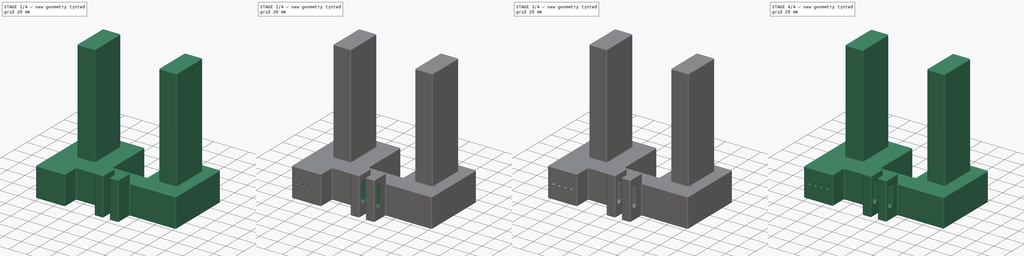
[diagram: build sequence overview — one tinted view per stage of 4, left to right]
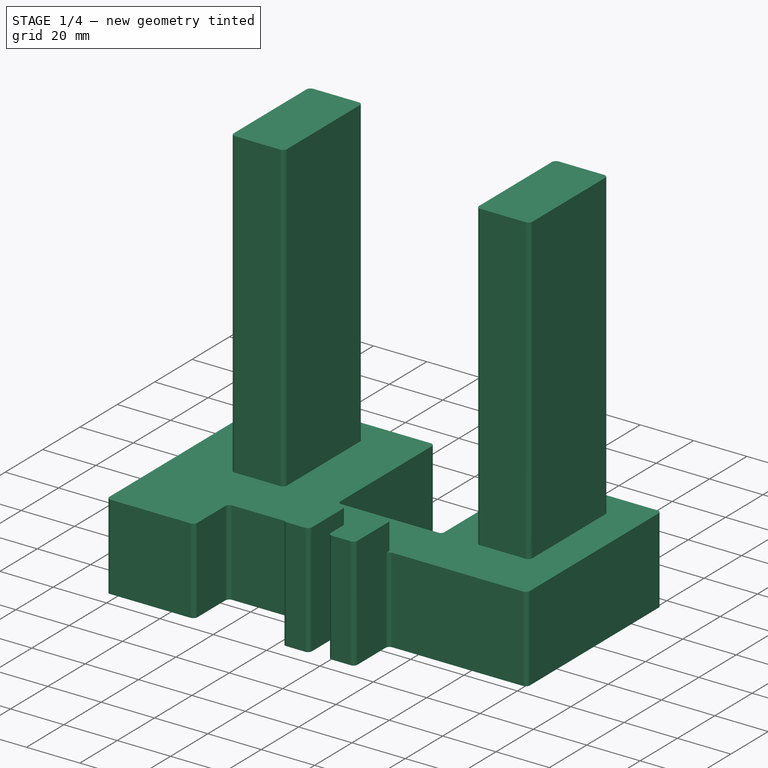
[diagram: stage 1 of 4 — iso view after this stage's code; geometry added in this stage tinted green]
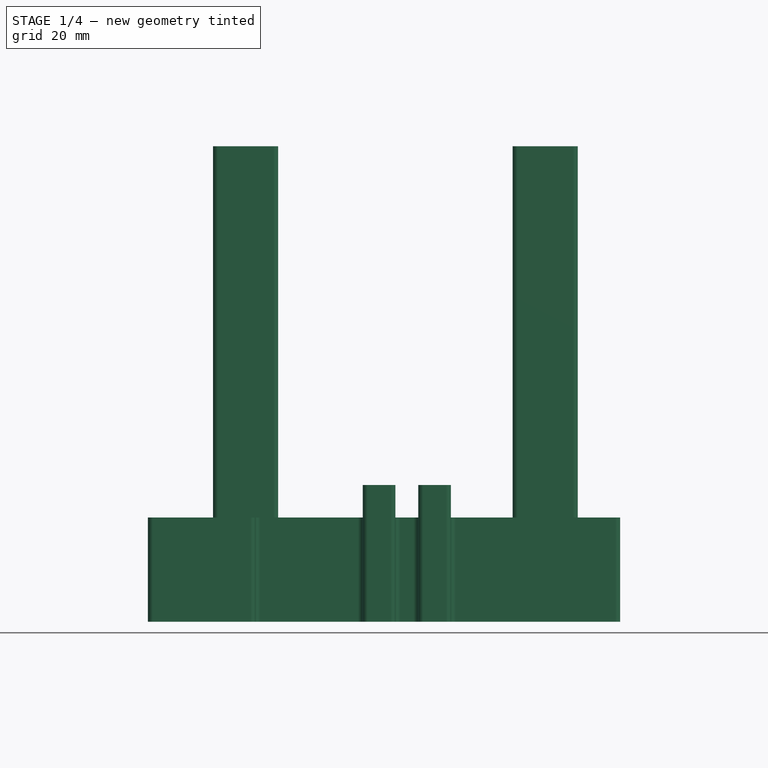
[diagram: stage 1 of 4 — front view after this stage's code; geometry added in this stage tinted green]
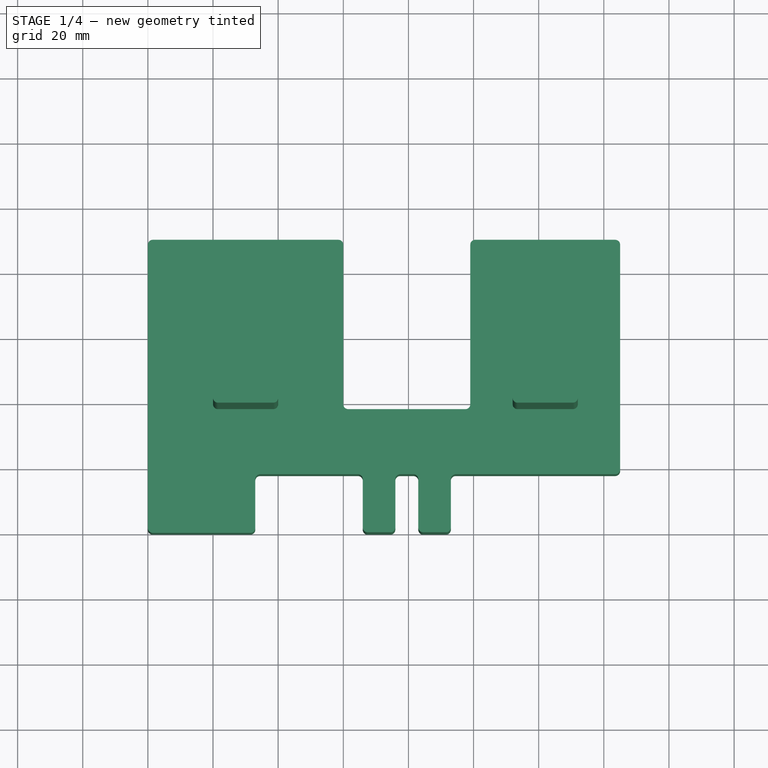
[diagram: stage 1 of 4 — top view after this stage's code; geometry added in this stage tinted green]
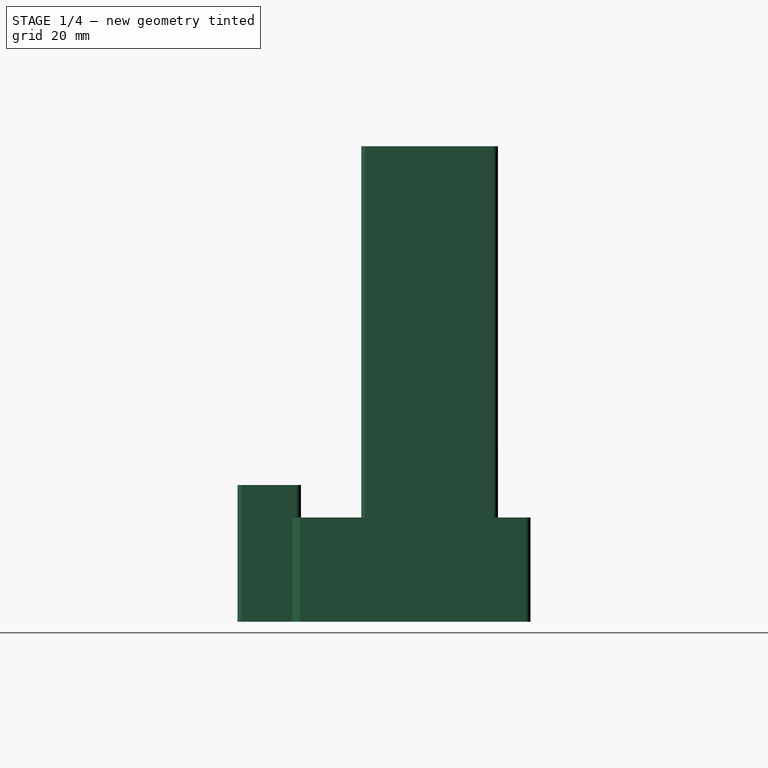
[diagram: stage 1 of 4 — right view after this stage's code; geometry added in this stage tinted green]
FCSTD DOCUMENT  (FreeCAD 1.0RUnknown)
Label: water-valve-support-bolthead
License: All rights reserved
LicenseURL: https://en.wikipedia.org/wiki/All_rights_reserved
objects: Sketcher::SketchObject×6, PartDesign::Pad×4, PartDesign::Fillet×4, PartDesign::Pocket×3, PartDesign::Body×1
note: 46 computed .brp shape members not serialized (recipe doc carries the construction recipe); baked Part::Feature solids carry a one-line shape summary decoded from their .brp

FEATURE [Sketcher::SketchObject] Sketch
  ArcFitTolerance = 1e-06
  AttachmentSupport = -> [XY_Plane]
  FullyConstrained = false
  MakeInternals = false
  MapMode = 5
  sketch-geometry (67):
    g0: LineSegment StartX=0 StartY=1.5 StartZ=0 EndX=0 EndY=38 EndZ=0
    g1: LineSegment StartX=0 StartY=38 StartZ=0 EndX=0 EndY=88.5 EndZ=0
    g2: LineSegment StartX=1.5 StartY=90 StartZ=0 EndX=58.5 EndY=90 EndZ=0
    g3: LineSegment StartX=60 StartY=88.5 StartZ=0 EndX=60 EndY=39.5 EndZ=0
    g4: LineSegment StartX=61.5 StartY=38 StartZ=0 EndX=97.5 EndY=38 EndZ=0
    g5: LineSegment StartX=99 StartY=39.5 StartZ=0 EndX=99 EndY=88.5 EndZ=0
    g6: LineSegment StartX=100.5 StartY=90 StartZ=0 EndX=143.5 EndY=90 EndZ=0
    g7: LineSegment StartX=145 StartY=88.5 StartZ=0 EndX=145 EndY=19.5 EndZ=0
    g8: LineSegment [constr] StartX=143.506 StartY=0 StartZ=0 EndX=122.525 EndY=0 EndZ=0
    g9: ArcOfCircle CenterX=1.5 CenterY=88.5 CenterZ=0 NormalX=0 NormalY=0 NormalZ=1 AngleXU=0 Radius=1.5 StartAngle=1.5708 EndAngle=3.14159
    g10: GeomPoint [constr] X=0 Y=90 Z=0
    g11: ArcOfCircle CenterX=58.5 CenterY=88.5 CenterZ=0 NormalX=0 NormalY=0 NormalZ=1 AngleXU=0 Radius=1.5 StartAngle=-9e-16 EndAngle=1.5708
    g12: GeomPoint [constr] X=60 Y=90 Z=0
    g13: ArcOfCircle CenterX=61.5 CenterY=39.5 CenterZ=0 NormalX=0 NormalY=0 NormalZ=1 AngleXU=0 Radius=1.5 StartAngle=3.14159 EndAngle=4.71239
    g14: GeomPoint [constr] X=60 Y=38 Z=0
    g15: ArcOfCircle CenterX=97.5 CenterY=39.5 CenterZ=0 NormalX=0 NormalY=0 NormalZ=1 AngleXU=0 Radius=1.5 StartAngle=4.71239 EndAngle=6.28319
    g16: GeomPoint [constr] X=99 Y=38 Z=0
    g17: ArcOfCircle CenterX=100.5 CenterY=88.5 CenterZ=0 NormalX=0 NormalY=0 NormalZ=1 AngleXU=0 Radius=1.5 StartAngle=1.5708 EndAngle=3.14159
    g18: GeomPoint [constr] X=99 Y=90 Z=0
    g19: ArcOfCircle CenterX=143.5 CenterY=88.5 CenterZ=0 NormalX=0 NormalY=0 NormalZ=1 AngleXU=0 Radius=1.5 StartAngle=0 EndAngle=1.5708
    g20: GeomPoint [constr] X=145 Y=90 Z=0
    g21: ArcOfCircle [constr] CenterX=143.506 CenterY=1.5 CenterZ=0 NormalX=0 NormalY=0 NormalZ=1 AngleXU=0 Radius=1.5 StartAngle=4.71239 EndAngle=6.28336
    g22: GeomPoint [constr] X=145 Y=0 Z=0
    g23: ArcOfCircle CenterX=1.5 CenterY=1.5 CenterZ=0 NormalX=0 NormalY=0 NormalZ=1 AngleXU=0 Radius=1.5 StartAngle=3.14159 EndAngle=4.7124
    g24: GeomPoint [constr] X=0 Y=0 Z=0
    g25: GeomPoint [constr] X=79.5 Y=38 Z=0
    g26: LineSegment [constr] StartX=79.5 StartY=38 StartZ=0 EndX=79.5 EndY=0 EndZ=0
    g27: LineSegment StartX=75.975 StartY=1.5 StartZ=0 EndX=75.975 EndY=16.5 EndZ=0
    g28: LineSegment StartX=77.475 StartY=18 StartZ=0 EndX=81.525 EndY=18 EndZ=0
    g29: LineSegment StartX=83.025 StartY=1.5 StartZ=0 EndX=83.025 EndY=16.5 EndZ=0
    g30: GeomPoint [constr] X=79.5 Y=18 Z=0
    g31: LineSegment StartX=32.975 StartY=16.5 StartZ=0 EndX=32.975 EndY=1.5 EndZ=0
    g32: LineSegment StartX=65.975 StartY=1.5 StartZ=0 EndX=65.975 EndY=16.5 EndZ=0
    g33: LineSegment StartX=64.475 StartY=18 StartZ=0 EndX=34.475 EndY=18 EndZ=0
    g34: LineSegment StartX=93.025 StartY=16.5 StartZ=0 EndX=93.025 EndY=1.5 EndZ=0
    g35: LineSegment [constr] StartX=121.025 StartY=1.5 StartZ=0 EndX=121.025 EndY=16.5 EndZ=0
    g36: LineSegment StartX=119.525 StartY=18 StartZ=0 EndX=94.525 EndY=18 EndZ=0
    g37: LineSegment StartX=31.475 StartY=0 StartZ=0 EndX=1.50001 EndY=0 EndZ=0
    g38: LineSegment StartX=74.475 StartY=0 StartZ=0 EndX=67.475 EndY=0 EndZ=0
    g39: LineSegment StartX=91.525 StartY=0 StartZ=0 EndX=84.525 EndY=0 EndZ=0
    g40: ArcOfCircle CenterX=31.475 CenterY=1.5 CenterZ=0 NormalX=0 NormalY=0 NormalZ=1 AngleXU=0 Radius=1.5 StartAngle=4.71239 EndAngle=6.28319
    g41: ArcOfCircle CenterX=67.475 CenterY=1.5 CenterZ=0 NormalX=0 NormalY=0 NormalZ=1 AngleXU=0 Radius=1.5 StartAngle=3.14159 EndAngle=4.71239
    g42: GeomPoint [constr] X=65.975 Y=0 Z=0
    g43: ArcOfCircle CenterX=74.475 CenterY=1.5 CenterZ=0 NormalX=0 NormalY=0 NormalZ=1 AngleXU=0 Radius=1.5 StartAngle=4.71239 EndAngle=6.28319
    g44: ArcOfCircle CenterX=84.525 CenterY=1.5 CenterZ=0 NormalX=0 NormalY=0 NormalZ=1 AngleXU=0 Radius=1.5 StartAngle=3.14159 EndAngle=4.71239
    g45: GeomPoint [constr] X=83.025 Y=0 Z=0
    g46: ArcOfCircle CenterX=91.525 CenterY=1.5 CenterZ=0 NormalX=0 NormalY=0 NormalZ=1 AngleXU=0 Radius=1.5 StartAngle=4.71239 EndAngle=6.28319
    g47: ArcOfCircle [constr] CenterX=122.525 CenterY=1.5 CenterZ=0 NormalX=0 NormalY=0 NormalZ=1 AngleXU=0 Radius=1.5 StartAngle=3.14159 EndAngle=4.71239
    g48: ArcOfCircle CenterX=34.475 CenterY=16.5 CenterZ=0 NormalX=0 NormalY=0 NormalZ=1 AngleXU=0 Radius=1.5 StartAngle=1.5708 EndAngle=3.14159
    g49: GeomPoint [constr] X=32.975 Y=18 Z=0
    g50: GeomPoint [constr] X=65.975 Y=18 Z=0
    g51: GeomPoint [constr] X=75.975 Y=18 Z=0
    g52: GeomPoint [constr] X=83.025 Y=18 Z=0
    g53: GeomPoint [constr] X=93.025 Y=18 Z=0
    g54: ArcOfCircle [constr] CenterX=119.525 CenterY=16.5 CenterZ=0 NormalX=0 NormalY=0 NormalZ=1 AngleXU=0 Radius=1.5 StartAngle=9e-16 EndAngle=1.5708
    g55: GeomPoint [constr] X=121.025 Y=18 Z=0
    g56: ArcOfCircle CenterX=64.475 CenterY=16.5 CenterZ=0 NormalX=0 NormalY=0 NormalZ=1 AngleXU=0 Radius=1.5 StartAngle=0 EndAngle=1.5708
    g57: GeomPoint [constr] X=65.975 Y=18 Z=0
    g58: ArcOfCircle CenterX=77.475 CenterY=16.5 CenterZ=0 NormalX=0 NormalY=0 NormalZ=1 AngleXU=0 Radius=1.5 StartAngle=1.5708 EndAngle=3.14159
    g59: GeomPoint [constr] X=75.975 Y=18 Z=0
    g60: ArcOfCircle CenterX=81.525 CenterY=16.5 CenterZ=0 NormalX=0 NormalY=0 NormalZ=1 AngleXU=0 Radius=1.5 StartAngle=6e-16 EndAngle=1.5708
    g61: GeomPoint [constr] X=83.025 Y=18 Z=0
    g62: ArcOfCircle CenterX=94.525 CenterY=16.5 CenterZ=0 NormalX=0 NormalY=0 NormalZ=1 AngleXU=0 Radius=1.5 StartAngle=1.5708 EndAngle=3.14159
    g63: GeomPoint [constr] X=93.025 Y=18 Z=0
    g64: LineSegment StartX=119.525 StartY=18 StartZ=0 EndX=143.5 EndY=18 EndZ=0
    g65: ArcOfCircle CenterX=143.5 CenterY=19.5 CenterZ=0 NormalX=0 NormalY=0 NormalZ=1 AngleXU=0 Radius=1.5 StartAngle=4.71239 EndAngle=6.28319
    g66: LineSegment [constr] StartX=145 StartY=19.5 StartZ=0 EndX=145 EndY=1.36507 EndZ=0
  constraints (152):
    c: Coincident(g24,g-1)
    c: PointOnObject(g0,g-2)
    c: Vertical(g1)
    c: Horizontal(g2)
    c: Vertical(g3)
    c: Horizontal(g4)
    c: Vertical(g5)
    c: Horizontal(g6)
    c: Vertical(g7)
    c: PointOnObject(g22,g-1)
    c: Horizontal(g1,g14)
    c: DistanceX(g24,g22) = 145
    c: Distance(g24,g0) = 38
    c: DistanceX(g16,g22) = 46
    c: DistanceX(g14,g16) = 39
    c: Distance(g12,g14) = 52
    c: Coincident(g1,g0)
    c: PointOnObject(g10,g1)
    c: PointOnObject(g10,g2)
    c: Tangent(g1,g9) = 1.5708
    c: Tangent(g2,g9) = 1.5708
    c: PointOnObject(g12,g2)
    c: PointOnObject(g12,g3)
    c: Tangent(g2,g11) = 1.5708
    c: Tangent(g3,g11) = 1.5708
    c: PointOnObject(g14,g4)
    c: PointOnObject(g14,g3)
    c: Tangent(g4,g13) = -1.5708
    c: Tangent(g3,g13) = -1.5708
    c: PointOnObject(g16,g5)
    c: PointOnObject(g16,g4)
    c: Tangent(g5,g15) = -1.5708
    c: Tangent(g4,g15) = -1.5708
    c: PointOnObject(g18,g5)
    c: PointOnObject(g18,g6)
    c: Tangent(g5,g17) = 1.5708
    c: Tangent(g6,g17) = 1.5708
    c: PointOnObject(g20,g6)
    c: PointOnObject(g20,g7)
    c: Tangent(g6,g19) = 1.5708
    c: Tangent(g7,g19) = 1.5708
    c: PointOnObject(g22,g8)
    c: PointOnObject(g22,g7)
    c: Tangent(g8,g21) = 1.5708
    c: PointOnObject(g24,g37)
    c: PointOnObject(g24,g0)
    c: Coincident(g37,g23) = 1.5708
    c: Tangent(g0,g23) = 1.5708
    c: Equal(g9,g11)
    c: Equal(g11,g13)
    c: Equal(g13,g15)
    c: Equal(g15,g17)
    c: Equal(g17,g19)
    c: Equal(g19,g21)
    c: Equal(g21,g23)
    c: Radius(g9) = 1.5
    c: Horizontal(g11,g17)
    c: Symmetric(g4,g4,g25)
    c: Coincident(g26,g25)
    c: Vertical(g26)
    c: Vertical(g27)
    c: Horizontal(g28)
    c: Vertical(g29)
    c: Symmetric(g51,g52,g30)
    c: PointOnObject(g30,g26)
    c: Vertical(g31)
    c: Vertical(g32)
    c: Horizontal(g33)
    c: Vertical(g34)
    c: Vertical(g35)
    c: Horizontal(g36)
    c: Horizontal(g53,g30)
    c: Horizontal(g30,g50)
    c: Tangent(g37,g40) = 1.5708
    c: Tangent(g31,g40) = 1.5708
    c: PointOnObject(g42,g32)
    c: PointOnObject(g42,g38)
    c: Tangent(g32,g41) = 1.5708
    c: Tangent(g38,g41) = 1.5708
    c: Tangent(g38,g43) = 1.5708
    c: Tangent(g27,g43) = -1.5708
    c: PointOnObject(g45,g29)
    c: PointOnObject(g45,g39)
    c: Tangent(g29,g44) = 1.5708
    c: Tangent(g39,g44) = 1.5708
    c: Tangent(g39,g46) = 1.5708
    c: Tangent(g34,g46) = 1.5708
    c: Tangent(g35,g47) = 1.5708
    c: Tangent(g8,g47) = 1.5708
    c: PointOnObject(g49,g31)
    c: PointOnObject(g49,g33)
    c: Tangent(g31,g48) = -1.5708
    c: Tangent(g33,g48) = -1.5708
    c: PointOnObject(g53,g34)
    c: PointOnObject(g53,g36)
    c: PointOnObject(g55,g36)
    c: PointOnObject(g55,g35)
    c: Tangent(g36,g54) = -1.5708
    c: Tangent(g35,g54) = -1.5708
    c: Equal(g40,g48)
    c: Equal(g41,g43)
    c: Equal(g44,g46)
    c: Equal(g54,g47)
    c: Horizontal(g38)
    c: Horizontal(g8)
    c: Horizontal(g39)
    c: Horizontal(g39,g8)
    c: Horizontal(g8,g38)
    c: Horizontal(g38,g26)
    c: Horizontal(g37,g38)
    c: Equal(g40,g23)
    c: Equal(g38,g39)
    c: Distance(g27,g32) = 10
    c: Distance(g49,g-1) = 18
    c: Distance(g29,g27) = 7.05
    c: Coincident(g57,g50)
    c: Coincident(g59,g51)
    c: Coincident(g61,g52)
    c: Equal(g46,g41)
    c: Equal(g43,g40)
    c: Equal(g47,g48)
    c: PointOnObject(g57,g33)
    c: PointOnObject(g57,g32)
    c: Tangent(g33,g56) = -1.5708
    c: Tangent(g32,g56) = -1.5708
    c: PointOnObject(g59,g27)
    c: PointOnObject(g59,g28)
    c: Tangent(g27,g58) = 1.5708
    c: Tangent(g28,g58) = 1.5708
    c: PointOnObject(g61,g28)
    c: PointOnObject(g61,g29)
    c: Tangent(g28,g60) = 1.5708
    c: Tangent(g29,g60) = -1.5708
    c: PointOnObject(g63,g34)
    c: PointOnObject(g63,g36)
    c: Tangent(g34,g62) = -1.5708
    c: Tangent(g36,g62) = -1.5708
    c: Equal(g62,g60)
    c: Equal(g60,g58)
    c: Equal(g58,g56)
    c: Equal(g56,g41)
    c: DistanceX(g33,g33) = 30
    c: DistanceX(g36,g36) = 25
    c: Horizontal(g23,g40)
    c: Coincident(g64,g36)
    c: Horizontal(g64)
    c: Tangent(g7,g65) = 1.5708
    c: Tangent(g64,g65) = -1.5708
    c: Equal(g65,g54)
    c: Tangent(g66,g65) = 1.5708
    c: PointOnObject(g66,g21)
    c: Vertical(g66)
FEATURE [PartDesign::Pad] Pad
  Direction = (0,0,1)
  Length = 32
  Length2 = 10
  Profile = -> Sketch
  ReferenceAxis = -> Sketch [N_Axis]
  Refine = true
  Suppressed = false
  Type = 0
FEATURE [Sketcher::SketchObject] Sketch001
  ArcFitTolerance = 1e-06
  AttachmentSupport = -> [Pad]
  ExternalGeometry = -> [Pad]
  FullyConstrained = false
  MakeInternals = false
  MapMode = 5
  Placement = pos=(0,0,32) rot=(0,0,1;0rad)
  sketch-geometry (35):
    g0: GeomPoint [constr] X=-6.4e-15 Y=90 Z=0
    g1: GeomPoint [constr] X=-6.4e-15 Y=38 Z=0
    g2: GeomPoint [constr] X=145 Y=90 Z=0
    g3: GeomPoint [constr] X=30 Y=90 Z=0
    g4: GeomPoint [constr] X=122 Y=90 Z=0
    g5: GeomPoint [constr] X=30 Y=90 Z=0
    g6: GeomPoint [constr] X=122 Y=90 Z=0
    g7: GeomPoint [constr] X=30 Y=90 Z=0
    g8: GeomPoint [constr] X=122 Y=90 Z=0
    g9: LineSegment StartX=20 StartY=78.5 StartZ=0 EndX=20 EndY=39.5 EndZ=0
    g10: LineSegment StartX=21.5 StartY=38 StartZ=0 EndX=38.5 EndY=38 EndZ=0
    g11: LineSegment StartX=40 StartY=39.5 StartZ=0 EndX=40 EndY=78.5 EndZ=0
    g12: LineSegment StartX=38.5 StartY=80 StartZ=0 EndX=21.5 EndY=80 EndZ=0
    g13: GeomPoint [constr] X=30 Y=59 Z=0
    g14: LineSegment StartX=112 StartY=78.5 StartZ=0 EndX=112 EndY=39.5 EndZ=0
    g15: LineSegment StartX=113.5 StartY=38 StartZ=0 EndX=130.5 EndY=38 EndZ=0
    g16: LineSegment StartX=132 StartY=39.5 StartZ=0 EndX=132 EndY=78.5 EndZ=0
    g17: LineSegment StartX=130.5 StartY=80 StartZ=0 EndX=113.5 EndY=80 EndZ=0
    g18: GeomPoint [constr] X=122 Y=59 Z=0
    g19: ArcOfCircle CenterX=21.5 CenterY=78.5 CenterZ=0 NormalX=0 NormalY=0 NormalZ=1 AngleXU=0 Radius=1.5 StartAngle=1.5708 EndAngle=3.14159
    g20: GeomPoint [constr] X=20 Y=80 Z=0
    g21: ArcOfCircle CenterX=38.5 CenterY=78.5 CenterZ=0 NormalX=0 NormalY=0 NormalZ=1 AngleXU=0 Radius=1.5 StartAngle=-9e-16 EndAngle=1.5708
    g22: GeomPoint [constr] X=40 Y=80 Z=0
    g23: ArcOfCircle CenterX=38.5 CenterY=39.5 CenterZ=0 NormalX=0 NormalY=0 NormalZ=1 AngleXU=0 Radius=1.5 StartAngle=4.71239 EndAngle=6.28319
    g24: GeomPoint [constr] X=40 Y=38 Z=0
    g25: ArcOfCircle CenterX=21.5 CenterY=39.5 CenterZ=0 NormalX=0 NormalY=0 NormalZ=1 AngleXU=0 Radius=1.5 StartAngle=3.14159 EndAngle=4.71239
    g26: GeomPoint [constr] X=20 Y=38 Z=0
    g27: ArcOfCircle CenterX=130.5 CenterY=78.5 CenterZ=0 NormalX=0 NormalY=0 NormalZ=1 AngleXU=0 Radius=1.5 StartAngle=-4.4e-15 EndAngle=1.5708
    g28: GeomPoint [constr] X=132 Y=80 Z=0
    g29: ArcOfCircle CenterX=113.5 CenterY=78.5 CenterZ=0 NormalX=0 NormalY=0 NormalZ=1 AngleXU=0 Radius=1.5 StartAngle=1.5708 EndAngle=3.14159
    g30: GeomPoint [constr] X=112 Y=80 Z=0
    g31: ArcOfCircle CenterX=113.5 CenterY=39.5 CenterZ=0 NormalX=0 NormalY=0 NormalZ=1 AngleXU=0 Radius=1.5 StartAngle=3.14159 EndAngle=4.71239
    g32: GeomPoint [constr] X=112 Y=38 Z=0
    g33: ArcOfCircle CenterX=130.5 CenterY=39.5 CenterZ=0 NormalX=0 NormalY=0 NormalZ=1 AngleXU=0 Radius=1.5 StartAngle=4.71239 EndAngle=6.28319
    g34: GeomPoint [constr] X=132 Y=38 Z=0
  constraints (64):
    c: Coincident(g7,g3)
    c: Coincident(g8,g4)
    c: Symmetric(g-3,g-3,g5)
    c: Symmetric(g-13,g-13,g6)
    c: Coincident(g7,g5)
    c: Coincident(g4,g6)
    c: Vertical(g9)
    c: Vertical(g11)
    c: Horizontal(g10)
    c: Horizontal(g12)
    c: Symmetric(g24,g20,g13)
    c: Vertical(g14)
    c: Vertical(g16)
    c: Horizontal(g15)
    c: Horizontal(g17)
    c: Symmetric(g34,g30,g18)
    c: Vertical(g13,g3)
    c: Vertical(g18,g4)
    c: Distance(g22,g20) = 20
    c: Horizontal(g24,g-10)
    c: Distance(g-3,g12) = 10
    c: Horizontal(g32,g24)
    c: PointOnObject(g20,g9)
    c: PointOnObject(g20,g12)
    c: Tangent(g9,g19) = -1.5708
    c: Tangent(g12,g19) = -1.5708
    c: PointOnObject(g22,g11)
    c: PointOnObject(g22,g12)
    c: Tangent(g11,g21) = -1.5708
    c: Tangent(g12,g21) = -1.5708
    c: PointOnObject(g24,g10)
    c: PointOnObject(g24,g11)
    c: Tangent(g10,g23) = -1.5708
    c: Tangent(g11,g23) = -1.5708
    c: PointOnObject(g26,g9)
    c: PointOnObject(g26,g10)
    c: Tangent(g9,g25) = -1.5708
    c: Tangent(g10,g25) = -1.5708
    c: PointOnObject(g28,g16)
    c: PointOnObject(g28,g17)
    c: Tangent(g16,g27) = -1.5708
    c: Tangent(g17,g27) = -1.5708
    c: PointOnObject(g30,g14)
    c: PointOnObject(g30,g17)
    c: Tangent(g14,g29) = -1.5708
    c: Tangent(g17,g29) = -1.5708
    c: PointOnObject(g32,g15)
    c: PointOnObject(g32,g14)
    c: Tangent(g15,g31) = -1.5708
    c: Tangent(g14,g31) = -1.5708
    c: PointOnObject(g34,g16)
    c: PointOnObject(g34,g15)
    c: Tangent(g16,g33) = -1.5708
    c: Tangent(g15,g33) = -1.5708
    c: Equal(g29,g27)
    c: Equal(g27,g33)
    c: Equal(g33,g31)
    c: Equal(g31,g23)
    c: Equal(g23,g21)
    c: Equal(g21,g19)
    c: Equal(g19,g25)
    c: Equal(g25,g-7)
    c: Equal(g17,g12)
    c: Equal(g14,g11)
FEATURE [PartDesign::Pad] Pad001
  BaseFeature = -> Pad
  Direction = (0,0,1)
  Length = 114
  Length2 = 10
  Profile = -> Sketch001
  ReferenceAxis = -> Sketch001 [N_Axis]
  Refine = true
  Suppressed = false
  Type = 0
FEATURE [Sketcher::SketchObject] Sketch002
  ArcFitTolerance = 1e-06
  AttachmentSupport = -> [Pad001]
  ExternalGeometry = -> [Pad001]
  FullyConstrained = true
  MakeInternals = false
  MapMode = 5
  Placement = pos=(0,0,32) rot=(0,0,1;0rad)
  sketch-geometry (24):
    g0: LineSegment StartX=65.975 StartY=18 StartZ=0 EndX=65.975 EndY=1.5 EndZ=0
    g1: LineSegment StartX=67.475 StartY=6.4e-15 StartZ=0 EndX=74.475 EndY=6.4e-15 EndZ=0
    g2: LineSegment StartX=75.975 StartY=1.5 StartZ=0 EndX=75.975 EndY=18 EndZ=0
    g3: LineSegment StartX=74.475 StartY=19.5 StartZ=0 EndX=67.475 EndY=19.5 EndZ=0
    g4: LineSegment StartX=83.025 StartY=18 StartZ=0 EndX=83.025 EndY=1.5 EndZ=0
    g5: LineSegment StartX=84.525 StartY=6.4e-15 StartZ=0 EndX=91.525 EndY=6.4e-15 EndZ=0
    g6: LineSegment StartX=93.025 StartY=1.5 StartZ=0 EndX=93.025 EndY=18 EndZ=0
    g7: LineSegment StartX=91.525 StartY=19.5 StartZ=0 EndX=84.525 EndY=19.5 EndZ=0
    g8: ArcOfCircle CenterX=67.475 CenterY=18 CenterZ=0 NormalX=0 NormalY=0 NormalZ=1 AngleXU=0 Radius=1.5 StartAngle=1.5708 EndAngle=3.14159
    g9: GeomPoint [constr] X=65.975 Y=19.5 Z=0
    g10: ArcOfCircle CenterX=74.475 CenterY=18 CenterZ=0 NormalX=0 NormalY=0 NormalZ=1 AngleXU=0 Radius=1.5 StartAngle=0 EndAngle=1.5708
    g11: GeomPoint [constr] X=75.975 Y=19.5 Z=0
    g12: ArcOfCircle CenterX=84.525 CenterY=18 CenterZ=0 NormalX=0 NormalY=0 NormalZ=1 AngleXU=0 Radius=1.5 StartAngle=1.5708 EndAngle=3.14159
    g13: GeomPoint [constr] X=83.025 Y=19.5 Z=0
    g14: ArcOfCircle CenterX=91.525 CenterY=18 CenterZ=0 NormalX=0 NormalY=0 NormalZ=1 AngleXU=0 Radius=1.5 StartAngle=-9e-16 EndAngle=1.5708
    g15: GeomPoint [constr] X=93.025 Y=19.5 Z=0
    g16: ArcOfCircle CenterX=91.525 CenterY=1.5 CenterZ=0 NormalX=0 NormalY=0 NormalZ=1 AngleXU=0 Radius=1.5 StartAngle=4.71239 EndAngle=6.28319
    g17: GeomPoint [constr] X=93.025 Y=6.4e-15 Z=0
    g18: ArcOfCircle CenterX=84.525 CenterY=1.5 CenterZ=0 NormalX=0 NormalY=0 NormalZ=1 AngleXU=0 Radius=1.5 StartAngle=3.14159 EndAngle=4.71239
    g19: GeomPoint [constr] X=83.025 Y=6.4e-15 Z=0
    g20: ArcOfCircle CenterX=74.475 CenterY=1.5 CenterZ=0 NormalX=0 NormalY=0 NormalZ=1 AngleXU=0 Radius=1.5 StartAngle=4.71239 EndAngle=6.28319
    g21: GeomPoint [constr] X=75.975 Y=6.4e-15 Z=0
    g22: ArcOfCircle CenterX=67.475 CenterY=1.5 CenterZ=0 NormalX=0 NormalY=0 NormalZ=1 AngleXU=0 Radius=1.5 StartAngle=3.14159 EndAngle=4.71239
    g23: GeomPoint [constr] X=65.975 Y=6.4e-15 Z=0
  constraints (51):
    c: Vertical(g0)
    c: Horizontal(g1)
    c: Horizontal(g3)
    c: Vertical(g4)
    c: Vertical(g6)
    c: Horizontal(g5)
    c: Horizontal(g7)
    c: PointOnObject(g9,g0)
    c: PointOnObject(g9,g3)
    c: Tangent(g0,g8) = -1.5708
    c: Tangent(g3,g8) = -1.5708
    c: PointOnObject(g11,g3)
    c: PointOnObject(g11,g2)
    c: Tangent(g3,g10) = -1.5708
    c: Tangent(g2,g10) = -1.5708
    c: PointOnObject(g13,g4)
    c: PointOnObject(g13,g7)
    c: Tangent(g4,g12) = -1.5708
    c: Tangent(g7,g12) = -1.5708
    c: PointOnObject(g15,g7)
    c: PointOnObject(g15,g6)
    c: Tangent(g7,g14) = -1.5708
    c: Tangent(g6,g14) = -1.5708
    c: PointOnObject(g17,g6)
    c: PointOnObject(g17,g5)
    c: Tangent(g6,g16) = -1.5708
    c: Tangent(g5,g16) = -1.5708
    c: PointOnObject(g19,g4)
    c: PointOnObject(g19,g5)
    c: Tangent(g4,g18) = -1.5708
    c: Tangent(g5,g18) = -1.5708
    c: PointOnObject(g21,g2)
    c: PointOnObject(g21,g1)
    c: Tangent(g2,g20) = -1.5708
    c: Tangent(g1,g20) = -1.5708
    c: PointOnObject(g23,g0)
    c: PointOnObject(g23,g1)
    c: Tangent(g0,g22) = -1.5708
    c: Tangent(g1,g22) = -1.5708
    c: Equal(g22,g8)
    c: Equal(g8,g10)
    c: Equal(g20,g18)
    c: Equal(g16,g12)
    c: Equal(g12,g14)
    c: Equal(g2,g4)
    c: Coincident(g20,g-6)
    c: Coincident(g-4,g22)
    c: Coincident(g18,g-10)
    c: Coincident(g16,g-12)
    c: Coincident(g2,g-7)
    c: Horizontal(g2,g-8)
FEATURE [PartDesign::Pad] Pad002
  BaseFeature = -> Pad001
  Direction = (0,0,1)
  Length = 10
  Length2 = 10
  Profile = -> Sketch002
  ReferenceAxis = -> Sketch002 [N_Axis]
  Refine = true
  Suppressed = false
  Type = 0
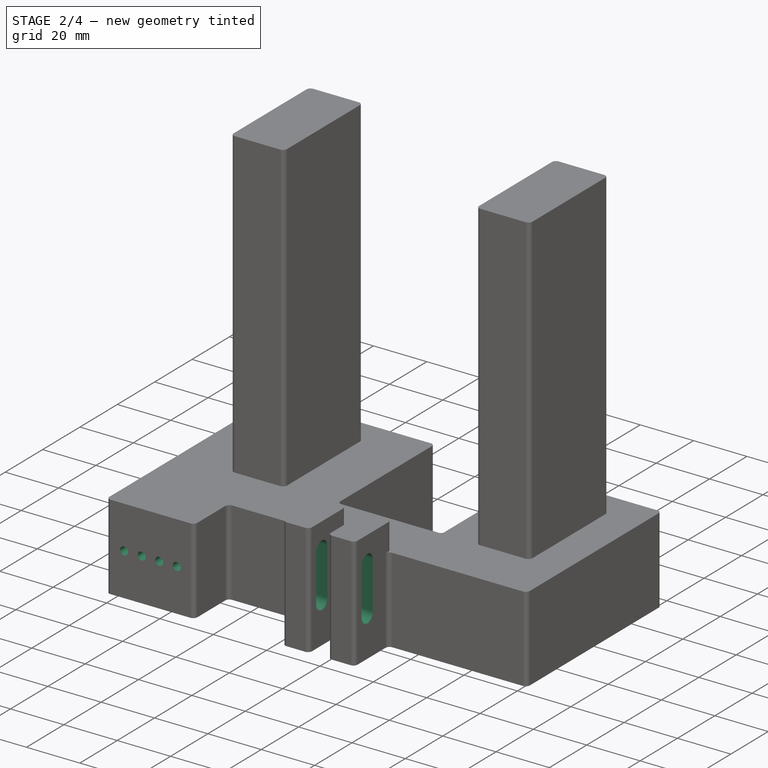
[diagram: stage 2 of 4 — iso view after this stage's code; geometry added in this stage tinted green]
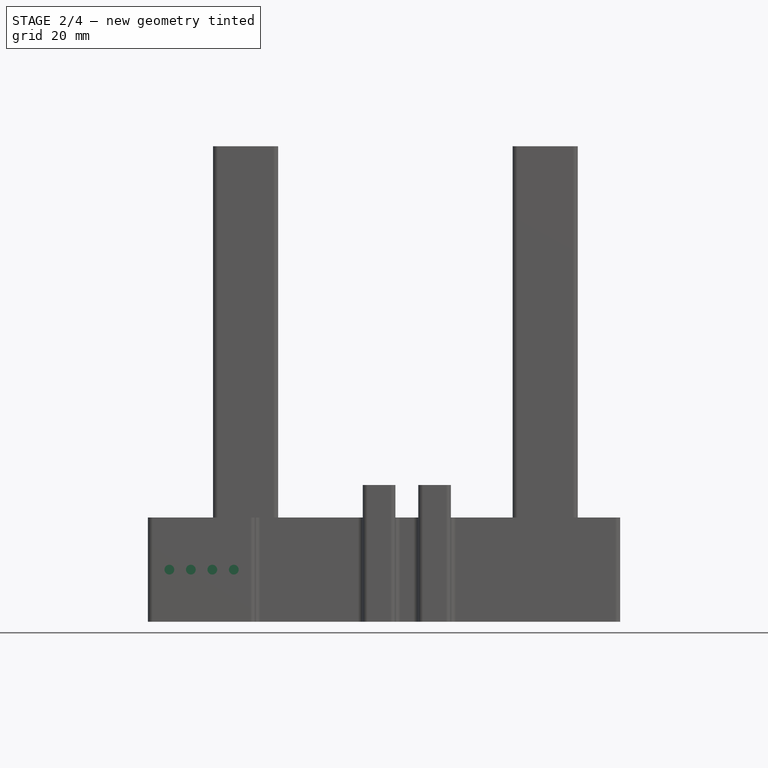
[diagram: stage 2 of 4 — front view after this stage's code; geometry added in this stage tinted green]
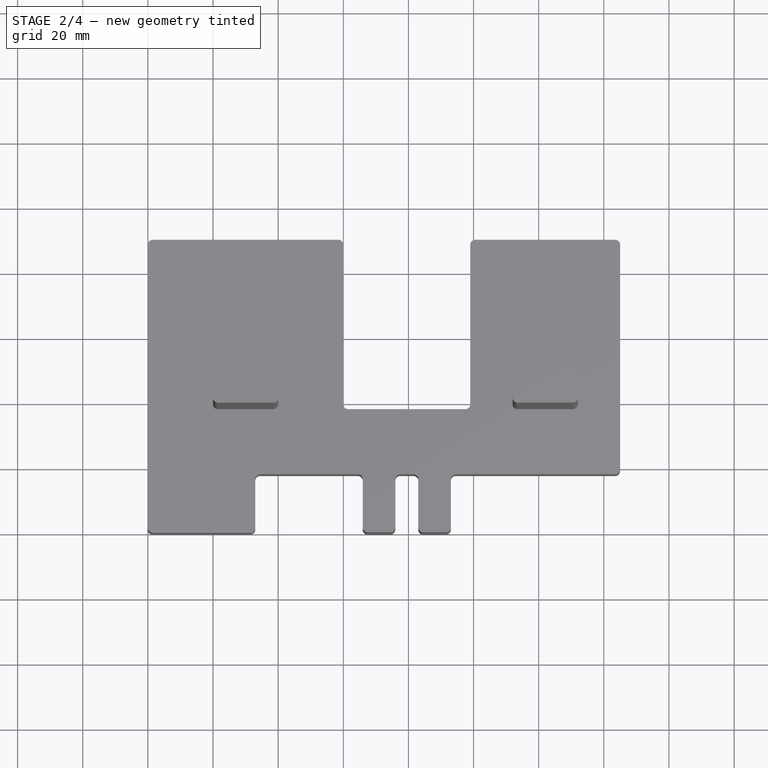
[diagram: stage 2 of 4 — top view after this stage's code; geometry added in this stage tinted green]
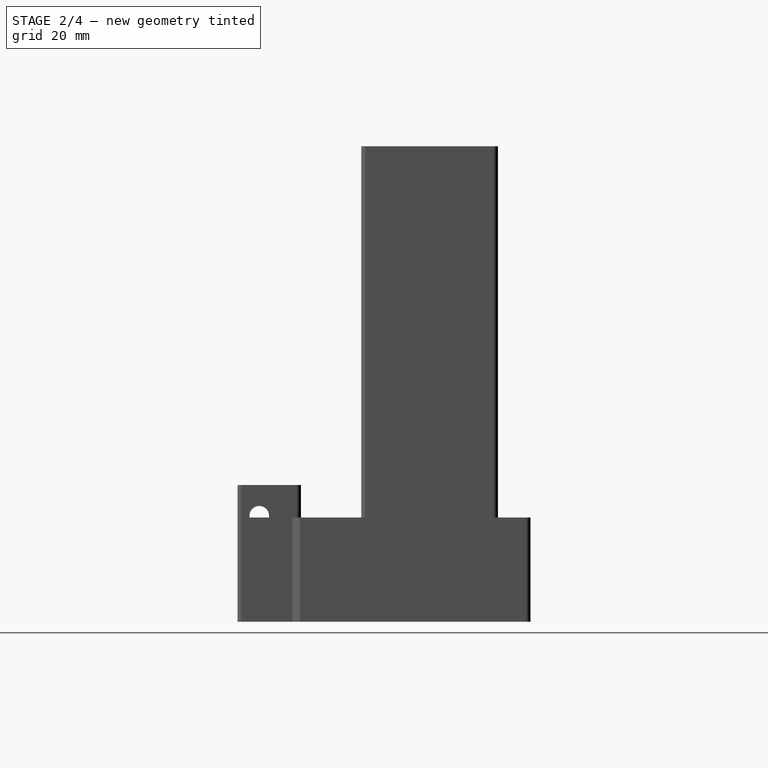
[diagram: stage 2 of 4 — right view after this stage's code; geometry added in this stage tinted green]
FEATURE [PartDesign::Pad] Pad003
  BaseFeature = -> Pad002
  Direction = (0,0,1)
  Length = 4.15
  Length2 = 10
  Profile = -> Sketch002
  ReferenceAxis = -> Sketch002 [N_Axis]
  Refine = true
  Suppressed = false
  Type = 0
FEATURE [Sketcher::SketchObject] Sketch003
  ArcFitTolerance = 1e-06
  AttachmentSupport = -> [Pad003]
  ExternalGeometry = -> [Pad003]
  FullyConstrained = true
  MakeInternals = false
  MapMode = 5
  Placement = pos=(65.975,0,0) rot=(0.57735,-0.57735,-0.57735;2.0944rad)
  sketch-geometry (5):
    g0: GeomPoint [constr] X=-6.7 Y=42 Z=0
    g1: ArcOfCircle CenterX=-6.7 CenterY=32.55 CenterZ=0 NormalX=0 NormalY=0 NormalZ=1 AngleXU=0 Radius=3 StartAngle=-9e-16 EndAngle=3.14159
    g2: ArcOfCircle CenterX=-6.7 CenterY=15 CenterZ=0 NormalX=0 NormalY=0 NormalZ=1 AngleXU=0 Radius=3 StartAngle=3.14159 EndAngle=6.28319
    g3: LineSegment StartX=-3.7 StartY=32.55 StartZ=0 EndX=-3.7 EndY=15 EndZ=0
    g4: LineSegment StartX=-9.7 StartY=32.55 StartZ=0 EndX=-9.7 EndY=15 EndZ=0
  constraints (12):
    c: PointOnObject(g0,g-3)
    c: Distance(g0,g-2) = 6.7
    c: Tangent(g1,g3) = 1.5708
    c: Tangent(g1,g4) = -1.5708
    c: Tangent(g2,g3) = 1.5708
    c: Tangent(g2,g4) = -1.5708
    c: Equal(g1,g2)
    c: Vertical(g4)
    c: Radius(g1) = 3
    c: Vertical(g1,g0)
    c: Distance(g1,g-3) = 9.45
    c: Distance(g2,g-1) = 15
FEATURE [PartDesign::Pocket] Pocket
  BaseFeature = -> Pad003
  Direction = (1,0,0)
  Length = 0
  Length2 = 5
  Profile = -> Sketch003
  ReferenceAxis = -> Sketch003 [N_Axis]
  Refine = true
  Suppressed = false
  Type = 3
  UpToFace = -> Pad003 [Face47]
FEATURE [Sketcher::SketchObject] Sketch004
  ArcFitTolerance = 1e-06
  AttachmentSupport = -> [Pocket]
  ExternalGeometry = -> [Pocket]
  FullyConstrained = true
  MakeInternals = false
  MapMode = 5
  Placement = pos=(0,0,0) rot=(1,0,0;1.5708rad)
  sketch-geometry (10):
    g0: GeomPoint [constr] X=0 Y=16 Z=0
    g1: Circle CenterX=6.595 CenterY=16 CenterZ=0 NormalX=0 NormalY=0 NormalZ=1 AngleXU=0 Radius=1.5
    g2: Circle CenterX=13.19 CenterY=16 CenterZ=0 NormalX=0 NormalY=0 NormalZ=1 AngleXU=0 Radius=1.5
    g3: Circle CenterX=19.785 CenterY=16 CenterZ=0 NormalX=0 NormalY=0 NormalZ=1 AngleXU=0 Radius=1.5
    g4: Circle CenterX=26.38 CenterY=16 CenterZ=0 NormalX=0 NormalY=0 NormalZ=1 AngleXU=0 Radius=1.5
    g5: LineSegment [constr] StartX=0 StartY=16 StartZ=0 EndX=6.595 EndY=16 EndZ=0
    g6: LineSegment [constr] StartX=6.595 StartY=16 StartZ=0 EndX=13.19 EndY=16 EndZ=0
    g7: LineSegment [constr] StartX=13.19 StartY=16 StartZ=0 EndX=19.785 EndY=16 EndZ=0
    g8: LineSegment [constr] StartX=19.785 StartY=16 StartZ=0 EndX=26.38 EndY=16 EndZ=0
    g9: LineSegment [constr] StartX=26.38 StartY=16 StartZ=0 EndX=32.975 EndY=16 EndZ=0
  constraints (23):
    c: Symmetric(g-3,g-3,g0)
    c: Diameter(g1) = 3
    c: Equal(g1,g2)
    c: Equal(g2,g3)
    c: Equal(g3,g4)
    c: Coincident(g5,g0)
    c: Coincident(g5,g1)
    c: Horizontal(g5)
    c: Coincident(g6,g1)
    c: Coincident(g6,g2)
    c: Horizontal(g6)
    c: Coincident(g7,g2)
    c: Coincident(g7,g3)
    c: Horizontal(g7)
    c: Coincident(g8,g3)
    c: Coincident(g8,g4)
    c: Horizontal(g8)
    c: Coincident(g9,g4)
    c: Symmetric(g-4,g-4,g9)
    c: Equal(g5,g6)
    c: Equal(g6,g7)
    c: Equal(g7,g8)
    c: Equal(g8,g9)
FEATURE [PartDesign::Pocket] Pocket001
  BaseFeature = -> Pocket
  Direction = (0,1,-2e-16)
  Length = 15
  Length2 = 5
  Profile = -> Sketch004
  ReferenceAxis = -> Sketch004 [N_Axis]
  Refine = true
  Suppressed = false
  Type = 0
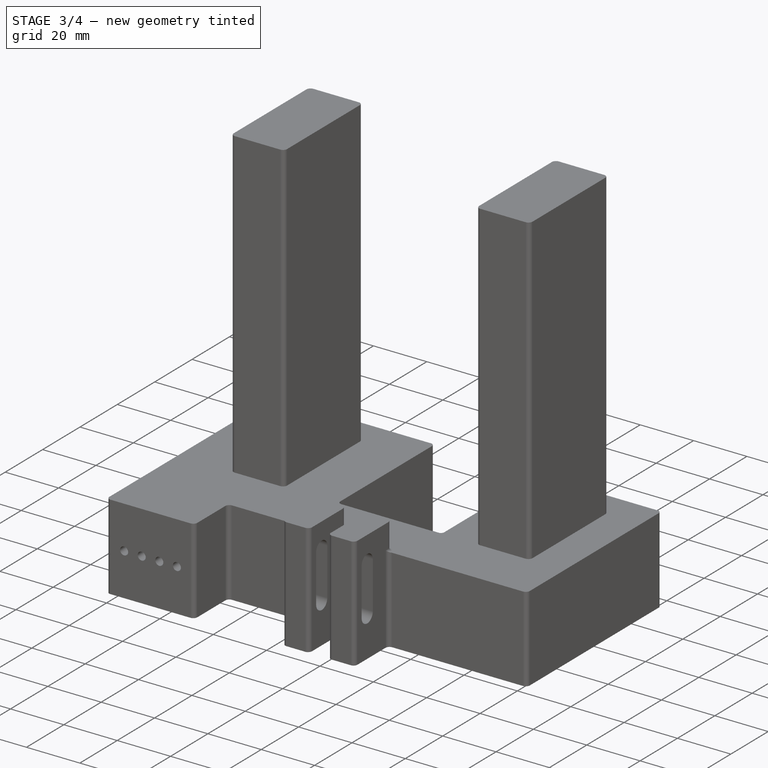
[diagram: stage 3 of 4 — iso view after this stage's code; geometry added in this stage tinted green]
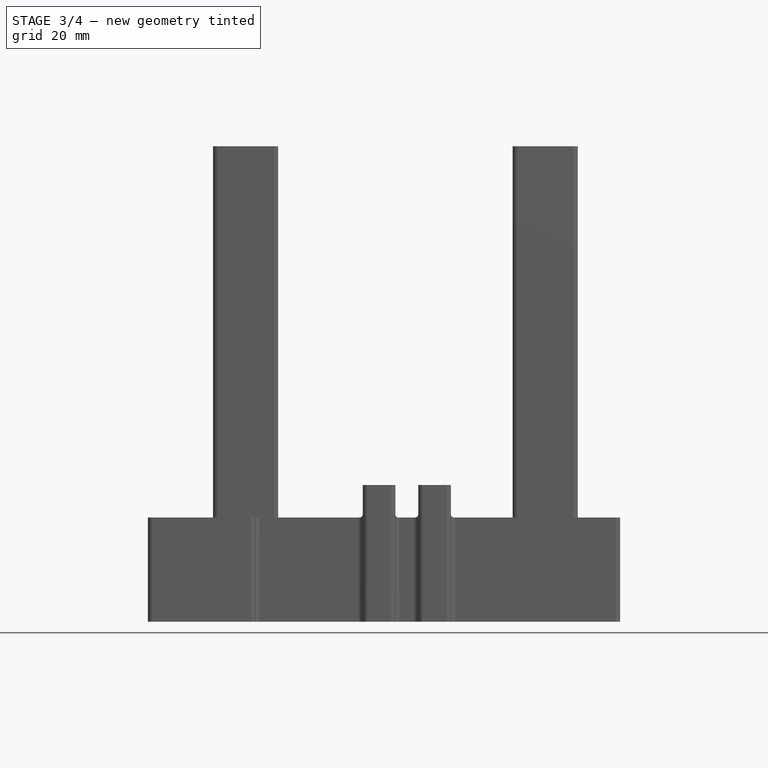
[diagram: stage 3 of 4 — front view after this stage's code; geometry added in this stage tinted green]
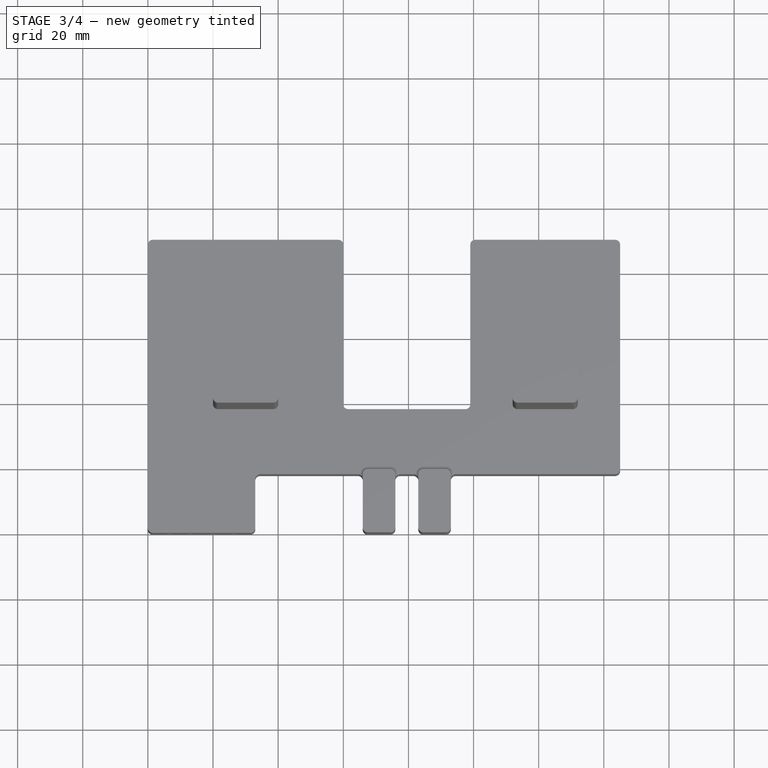
[diagram: stage 3 of 4 — top view after this stage's code; geometry added in this stage tinted green]
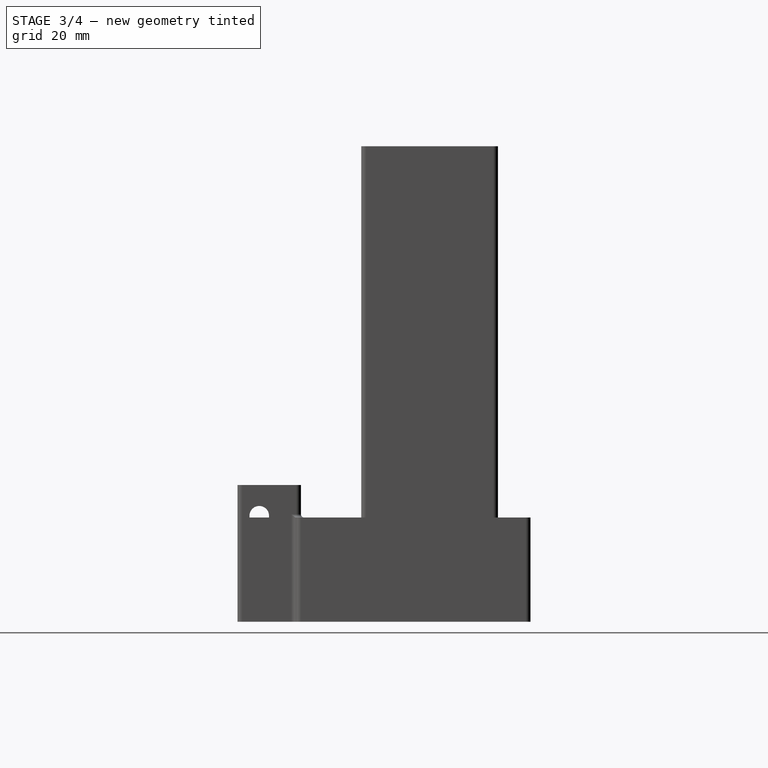
[diagram: stage 3 of 4 — right view after this stage's code; geometry added in this stage tinted green]
FEATURE [Sketcher::SketchObject] Sketch005
  ArcFitTolerance = 1e-06
  AttachmentSupport = -> [Pocket001]
  ExternalGeometry = -> [Pocket001]
  FullyConstrained = true
  MakeInternals = false
  MapMode = 5
  Placement = pos=(65.975,0,0) rot=(0.57735,-0.57735,-0.57735;2.0944rad)
  sketch-geometry (16):
    g0: LineSegment StartX=-6.7 StartY=38.4678 StartZ=0 EndX=-11.825 EndY=35.5089 EndZ=0
    g1: LineSegment StartX=-11.825 StartY=35.5089 StartZ=0 EndX=-11.825 EndY=29.5911 EndZ=0
    g2: LineSegment [constr] StartX=-11.825 StartY=29.5911 StartZ=0 EndX=-6.7 EndY=26.6322 EndZ=0
    g3: LineSegment [constr] StartX=-6.7 StartY=26.6322 StartZ=0 EndX=-1.575 EndY=29.5911 EndZ=0
    g4: LineSegment StartX=-1.575 StartY=29.5911 StartZ=0 EndX=-1.575 EndY=35.5089 EndZ=0
    g5: LineSegment StartX=-1.575 StartY=35.5089 StartZ=0 EndX=-6.7 EndY=38.4678 EndZ=0
    g6: Circle [constr] CenterX=-6.7 CenterY=32.55 CenterZ=0 NormalX=0 NormalY=0 NormalZ=1 AngleXU=0 Radius=5.91784
    g7: LineSegment [constr] StartX=-6.7 StartY=20.9178 StartZ=0 EndX=-11.825 EndY=17.9589 EndZ=0
    g8: LineSegment StartX=-11.825 StartY=17.9589 StartZ=0 EndX=-11.825 EndY=12.0411 EndZ=0
    g9: LineSegment StartX=-11.825 StartY=12.0411 StartZ=0 EndX=-6.7 EndY=9.08216 EndZ=0
    g10: LineSegment StartX=-6.7 StartY=9.08216 StartZ=0 EndX=-1.575 EndY=12.0411 EndZ=0
    g11: LineSegment StartX=-1.575 StartY=12.0411 StartZ=0 EndX=-1.575 EndY=17.9589 EndZ=0
    g12: LineSegment [constr] StartX=-1.575 StartY=17.9589 StartZ=0 EndX=-6.7 EndY=20.9178 EndZ=0
    g13: Circle [constr] CenterX=-6.7 CenterY=15 CenterZ=0 NormalX=0 NormalY=0 NormalZ=1 AngleXU=0 Radius=5.91784
    g14: LineSegment StartX=-11.825 StartY=29.5911 StartZ=0 EndX=-11.825 EndY=17.9589 EndZ=0
    g15: LineSegment StartX=-1.575 StartY=17.9589 StartZ=0 EndX=-1.575 EndY=29.5911 EndZ=0
  constraints (36):
    c: Coincident(g0,g1)
    c: Coincident(g1,g2)
    c: Coincident(g2,g3)
    c: Coincident(g3,g4)
    c: Coincident(g4,g5)
    c: Coincident(g5,g0)
    c: Equal(g0, g1-g5) x5
    c: PointOnObject(g0,g6)
    c: PointOnObject(g1,g6)
    c: PointOnObject(g2,g6)
    c: PointOnObject(g3,g6)
    c: PointOnObject(g4,g6)
    c: PointOnObject(g5,g6)
    c: Coincident(g6,g-4)
    c: Distance(g4,g1) = 10.25
    c: Vertical(g0,g6)
    c: Coincident(g7,g8)
    c: Coincident(g8,g9)
    c: Coincident(g9,g10)
    c: Coincident(g10,g11)
    c: Coincident(g11,g12)
    c: Coincident(g12,g7)
    c: Equal(g7, g8-g12) x5
    c: PointOnObject(g7,g13)
    c: PointOnObject(g8,g13)
    c: PointOnObject(g9,g13)
    c: PointOnObject(g10,g13)
    c: PointOnObject(g11,g13)
    c: PointOnObject(g12,g13)
    c: Coincident(g13,g-6)
    c: Vertical(g7,g13)
    c: Equal(g6,g13)
    c: Coincident(g14,g1)
    c: Coincident(g14,g7)
    c: Coincident(g15,g11)
    c: Coincident(g15,g3)
FEATURE [PartDesign::Pocket] Pocket002
  BaseFeature = -> Pocket001
  Direction = (1,0,0)
  Length = 4.5
  Length2 = 5
  Profile = -> Sketch005
  ReferenceAxis = -> Sketch005 [N_Axis]
  Refine = true
  Suppressed = false
  Type = 0
FEATURE [PartDesign::Fillet] Fillet
  Base = -> Pocket002 [Edge67,Edge59]
  BaseFeature = -> Pocket002
  Radius = 1
  Refine = true
  SupportTransform = false
  Suppressed = false
  UseAllEdges = false
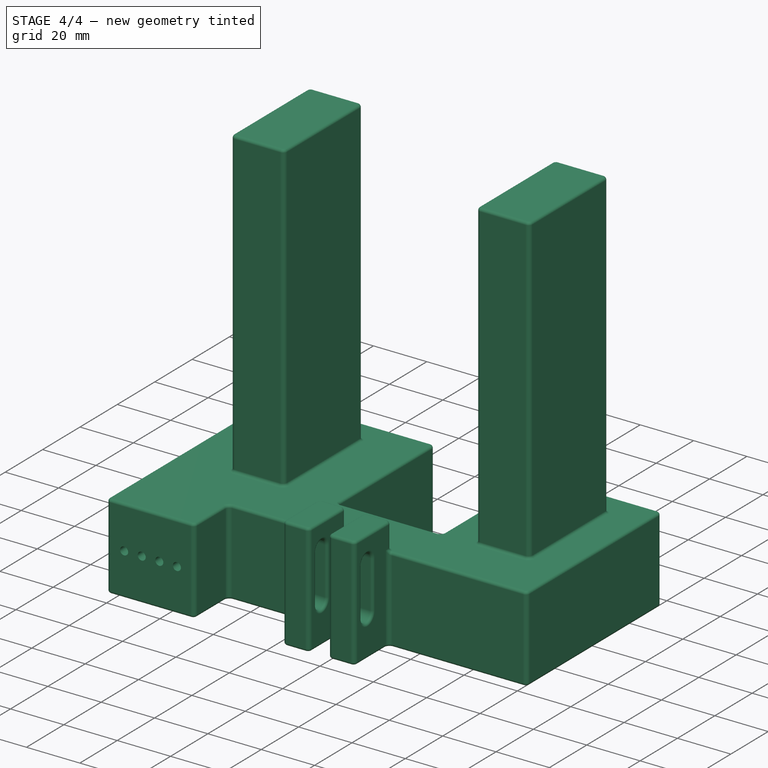
[diagram: stage 4 of 4 — iso view after this stage's code; geometry added in this stage tinted green]
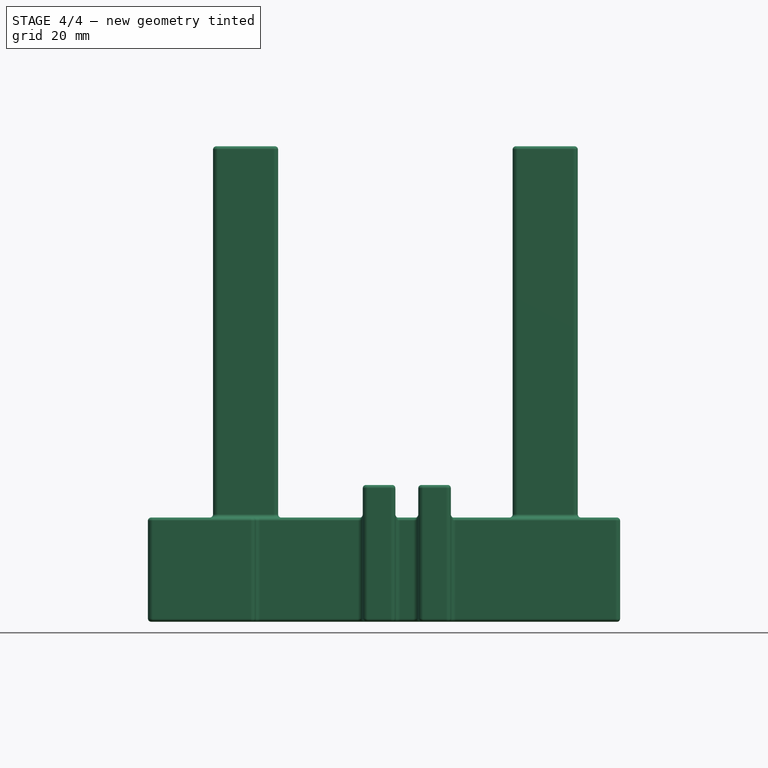
[diagram: stage 4 of 4 — front view after this stage's code; geometry added in this stage tinted green]
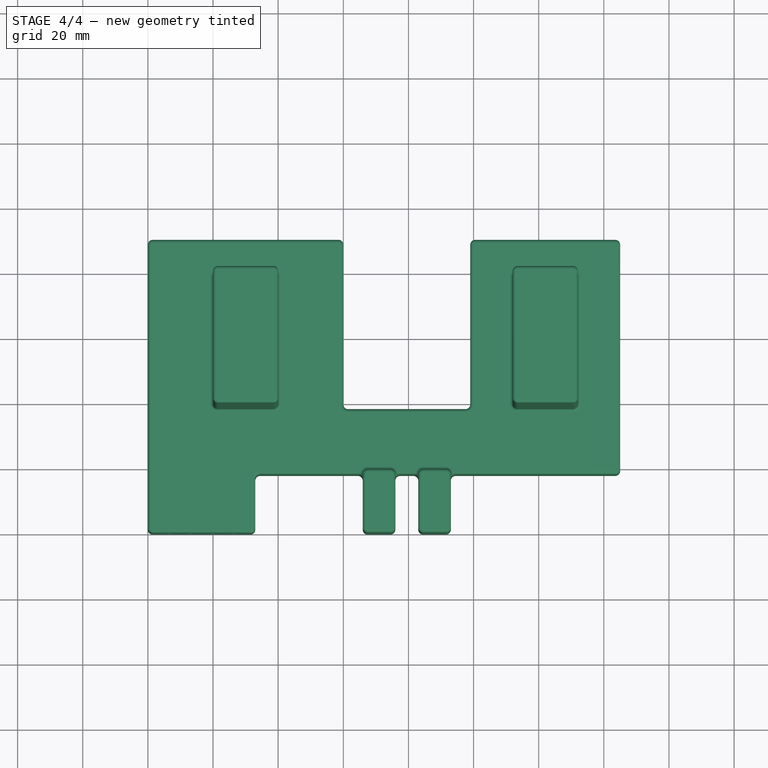
[diagram: stage 4 of 4 — top view after this stage's code; geometry added in this stage tinted green]
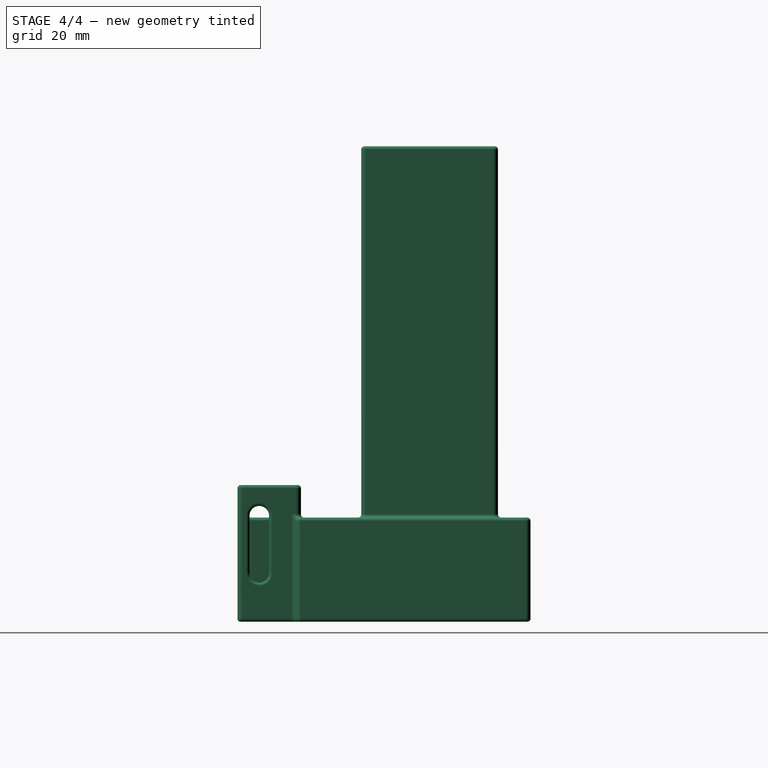
[diagram: stage 4 of 4 — right view after this stage's code; geometry added in this stage tinted green]
FEATURE [PartDesign::Fillet] Fillet001
  Base = -> Fillet [Edge30,Edge14,Edge3]
  BaseFeature = -> Fillet
  Radius = 1
  Refine = true
  SupportTransform = false
  Suppressed = false
  UseAllEdges = false
FEATURE [PartDesign::Fillet] Fillet002
  Base = -> Fillet001 [Edge204,Edge166,Edge185,Edge280,Edge254,Edge274,Edge316]
  BaseFeature = -> Fillet001
  Radius = 1
  Refine = true
  SupportTransform = false
  Suppressed = false
  UseAllEdges = false
FEATURE [PartDesign::Fillet] Fillet003
  Base = -> Fillet002 [Edge85,Edge77,Edge197,Edge213]
  BaseFeature = -> Fillet002
  Radius = 1
  Refine = true
  SupportTransform = false
  Suppressed = false
  UseAllEdges = false
FEATURE [PartDesign::Body] Body
  AllowCompound = false
  Group = -> [Sketch,Pad,Sketch001,Pad001,Sketch002,Pad002,Pad003,Sketch003,Pocket,Sketch004,Pocket001,Sketch005,Pocket002,Fillet,Fillet001,Fillet002,Fillet003]
  Origin = -> Origin
  Tip = -> Fillet003
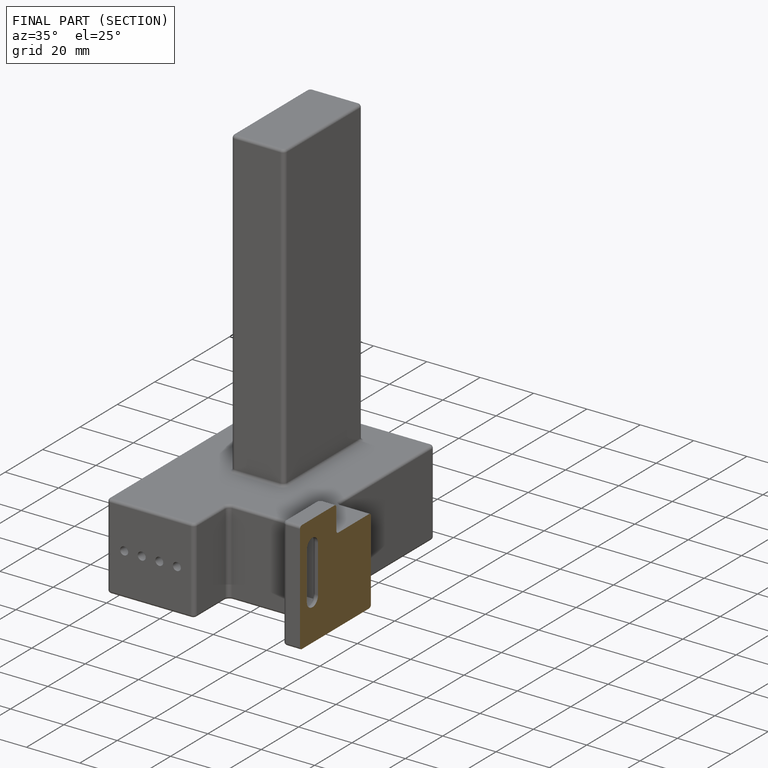
[diagram: finished part — half-section view (interior)]
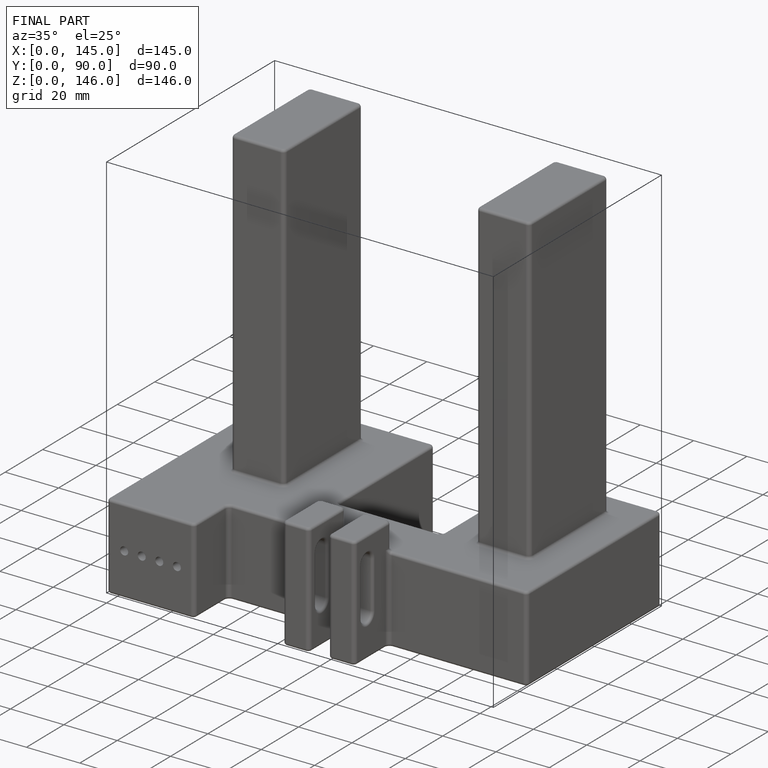
[diagram: finished part — iso view with bounding-box wireframe]
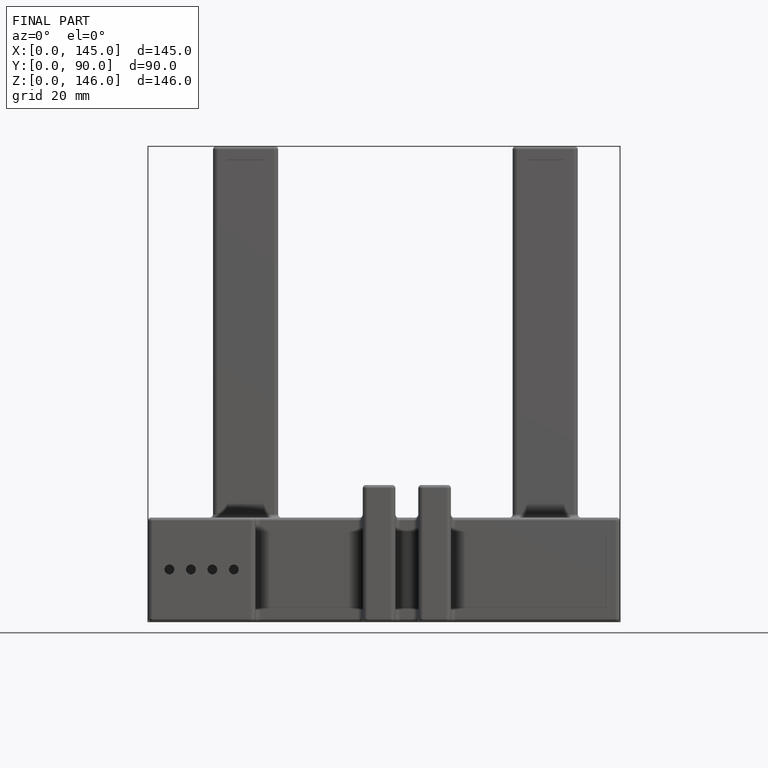
[diagram: finished part — front view with bounding-box wireframe]
